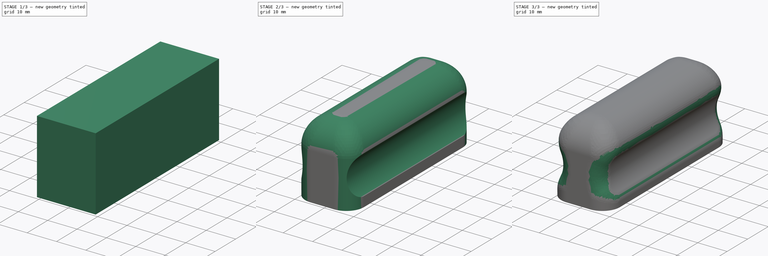
[diagram: build sequence overview — one tinted view per stage of 3, left to right]
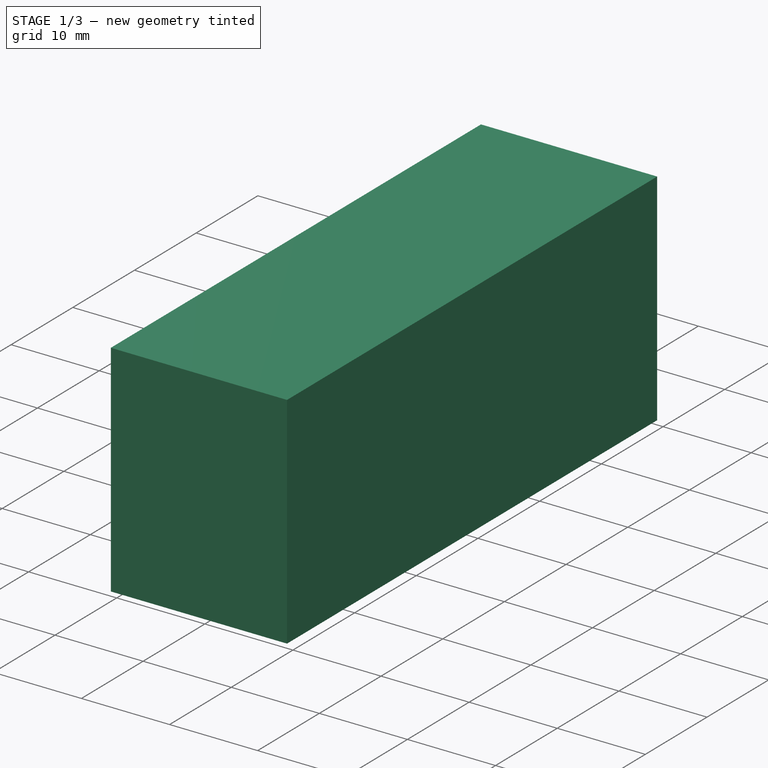
[diagram: stage 1 of 3 — iso view after this stage's code; geometry added in this stage tinted green]
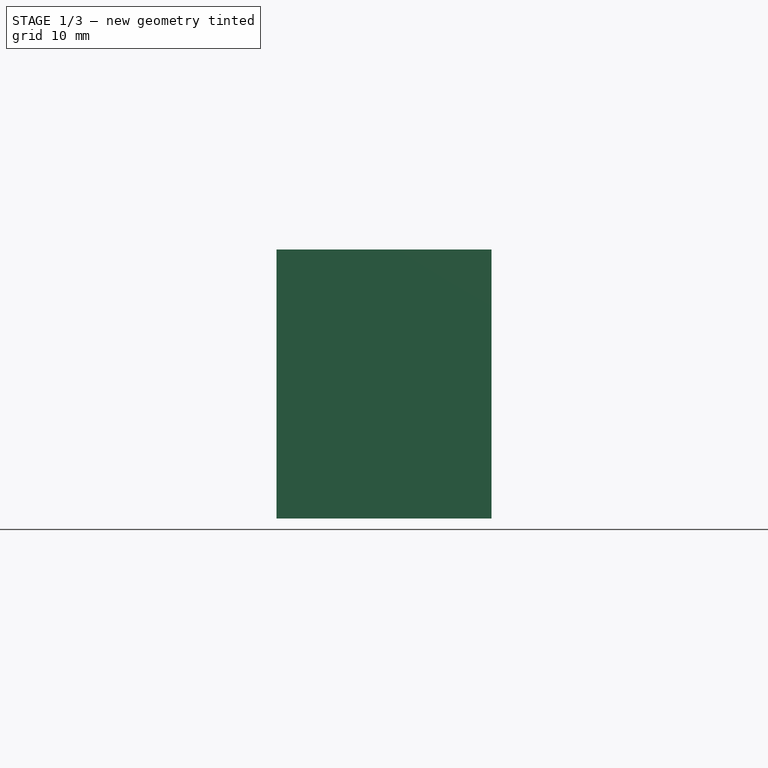
[diagram: stage 1 of 3 — front view after this stage's code; geometry added in this stage tinted green]
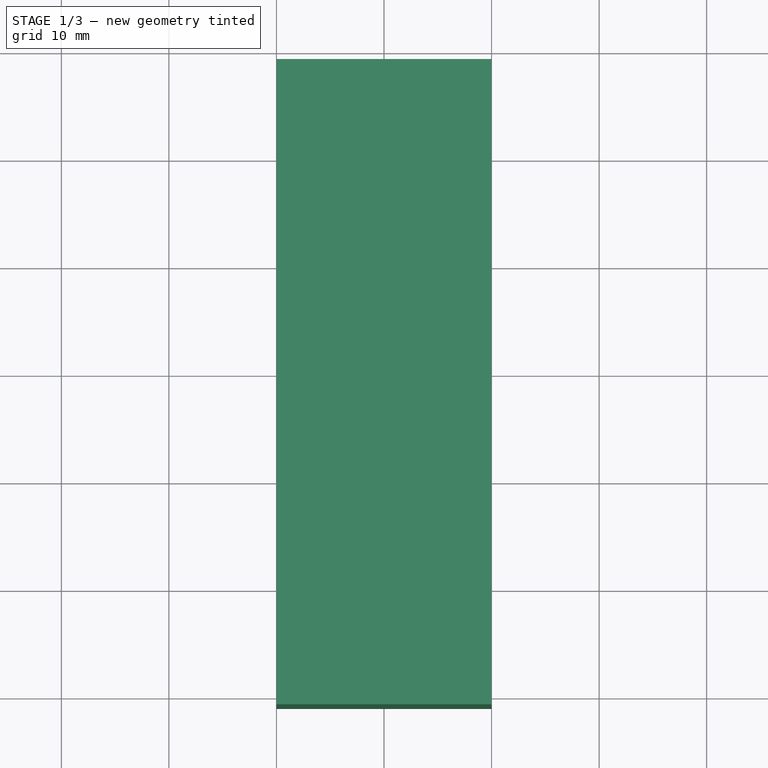
[diagram: stage 1 of 3 — top view after this stage's code; geometry added in this stage tinted green]
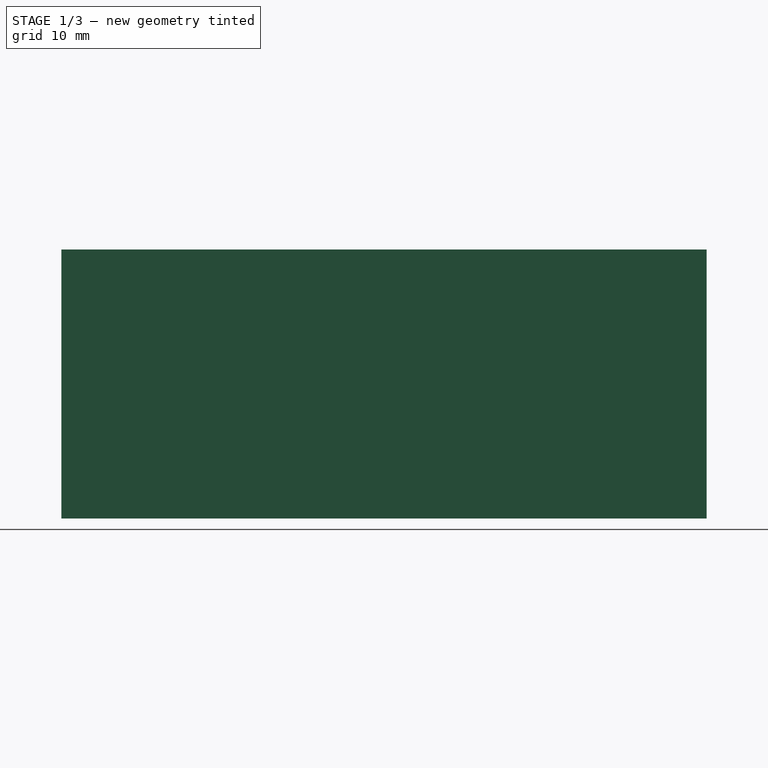
[diagram: stage 1 of 3 — right view after this stage's code; geometry added in this stage tinted green]
FCSTD DOCUMENT  (FreeCAD 0.17R11141 (Git))
Label: panel-handle
License: All rights reserved
LicenseURL: http://en.wikipedia.org/wiki/All_rights_reserved
objects: Sketcher::SketchObject×3, PartDesign::Fillet×3, PartDesign::Pad×2, PartDesign::Pocket×1, PartDesign::Chamfer×1, PartDesign::Body×1
note: 14 computed .brp shape members not serialized (recipe doc carries the construction recipe); baked Part::Feature solids carry a one-line shape summary decoded from their .brp

FEATURE [Sketcher::SketchObject] Sketch
  MapMode = 5
  Support = -> [XY_Plane]
  sketch-geometry (10):
    g0: Circle CenterX=0 CenterY=38.1 CenterZ=0 NormalX=0 NormalY=0 NormalZ=1 Radius=4
    g1: Circle CenterX=0 CenterY=0 CenterZ=0 NormalX=0 NormalY=0 NormalZ=1 Radius=4
    g2: LineSegment StartX=-10 StartY=-10.95 StartZ=0 EndX=10 EndY=-10.95 EndZ=0
    g3: LineSegment StartX=10 StartY=-10.95 StartZ=0 EndX=10 EndY=49.05 EndZ=0
    g4: LineSegment StartX=10 StartY=49.05 StartZ=0 EndX=-10 EndY=49.05 EndZ=0
    g5: LineSegment StartX=-10 StartY=49.05 StartZ=0 EndX=-10 EndY=-10.95 EndZ=0
    g6: LineSegment [constr] StartX=-10 StartY=49.05 StartZ=0 EndX=0 EndY=38.1 EndZ=0
    g7: LineSegment [constr] StartX=0 StartY=38.1 StartZ=0 EndX=10 EndY=49.05 EndZ=0
    g8: LineSegment [constr] StartX=10 StartY=49.05 StartZ=0 EndX=-10 EndY=-10.95 EndZ=0
    g9: LineSegment [constr] StartX=-10 StartY=-10.95 StartZ=0 EndX=0 EndY=0 EndZ=0
  constraints (25):
    c: PointOnObject(g0,g-2)
    c: Coincident(g1,g-1)
    c: Equal(g1,g0)
    c: Radius(g0) = 4
    c: DistanceY(g-1,g0) = 38.1
    c: Coincident(g2,g3)
    c: Coincident(g3,g4)
    c: Coincident(g4,g5)
    c: Coincident(g5,g2)
    c: Horizontal(g2)
    c: Horizontal(g4)
    c: Vertical(g3)
    c: Vertical(g5)
    c: Coincident(g4,g6)
    c: Coincident(g6,g0)
    c: Coincident(g6,g7)
    c: Coincident(g7,g3)
    c: Coincident(g7,g8)
    c: Coincident(g8,g2)
    c: Coincident(g8,g9)
    c: Coincident(g9,g-1)
    c: Equal(g9,g6)
    c: Equal(g6,g7)
    c: DistanceX(g4,g4) = 20
    c: DistanceY(g5,g5) = 60
FEATURE [PartDesign::Pad] Pad
  Length = 10
  Length2 = 100
  Profile = -> Sketch
  Type = 0
FEATURE [Sketcher::SketchObject] Sketch001
  ExternalGeometry = -> [Pad]
  MapMode = 5
  Placement = pos=(0,0,10) rot=(0,0,1;0rad)
  Support = -> [Pad]
  sketch-geometry (4):
    g0: LineSegment StartX=-10 StartY=49.05 StartZ=0 EndX=10 EndY=49.05 EndZ=0
    g1: LineSegment StartX=10 StartY=49.05 StartZ=0 EndX=10 EndY=-10.95 EndZ=0
    g2: LineSegment StartX=10 StartY=-10.95 StartZ=0 EndX=-10 EndY=-10.95 EndZ=0
    g3: LineSegment StartX=-10 StartY=-10.95 StartZ=0 EndX=-10 EndY=49.05 EndZ=0
  constraints (10):
    c: Coincident(g0,g1)
    c: Coincident(g1,g2)
    c: Coincident(g2,g3)
    c: Coincident(g3,g0)
    c: Horizontal(g0)
    c: Horizontal(g2)
    c: Vertical(g1)
    c: Vertical(g3)
    c: Coincident(g0,g-3)
    c: Coincident(g1,g-4)
FEATURE [PartDesign::Pad] Pad001
  BaseFeature = -> Pad
  Length = 15
  Length2 = 100
  Profile = -> Sketch001
  Type = 0
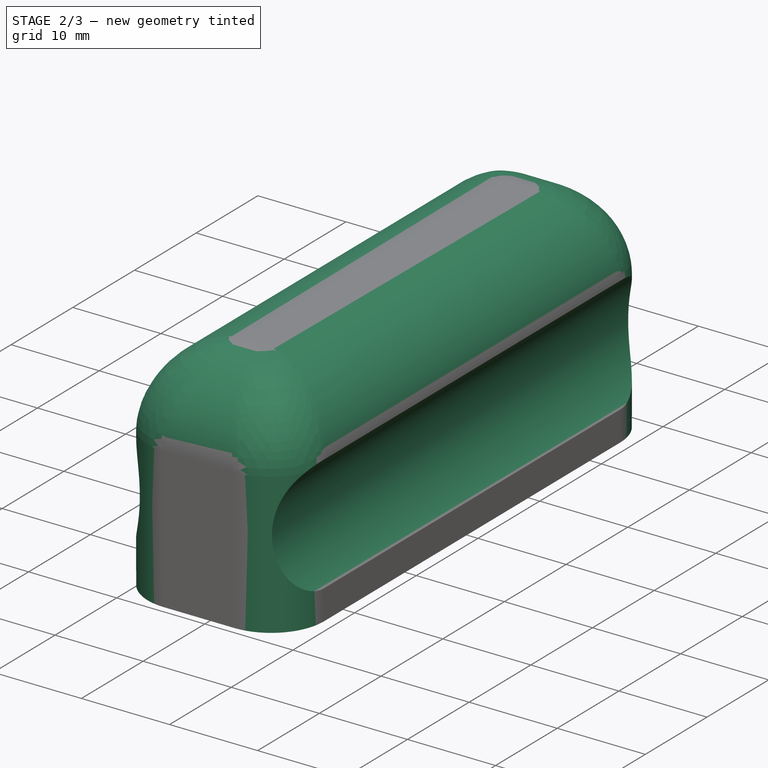
[diagram: stage 2 of 3 — iso view after this stage's code; geometry added in this stage tinted green]
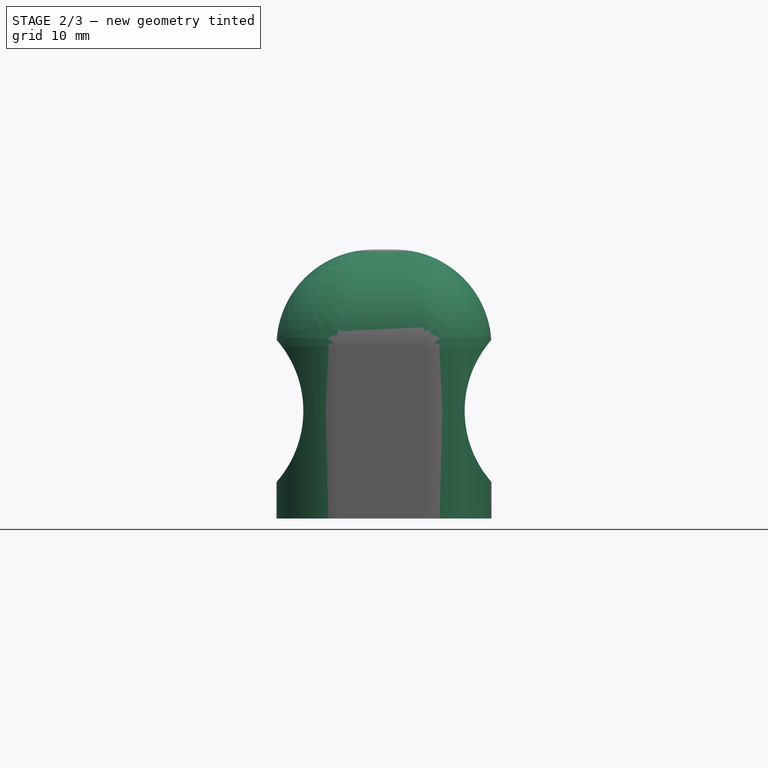
[diagram: stage 2 of 3 — front view after this stage's code; geometry added in this stage tinted green]
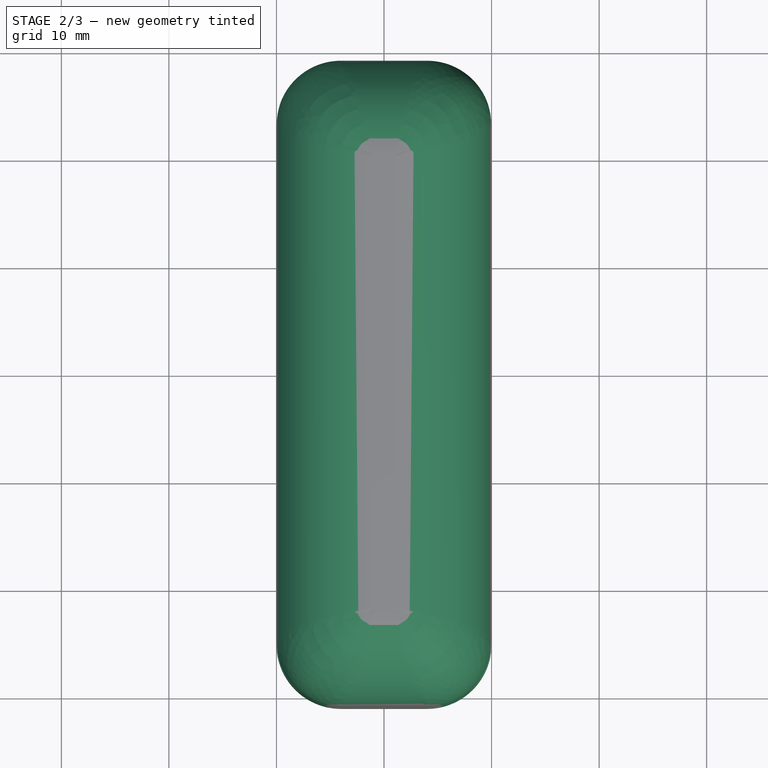
[diagram: stage 2 of 3 — top view after this stage's code; geometry added in this stage tinted green]
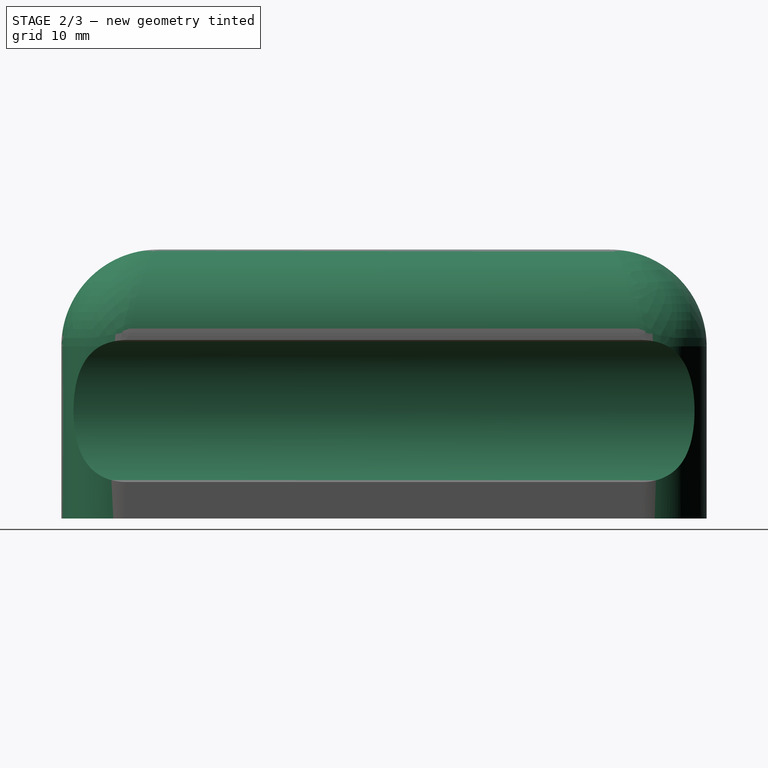
[diagram: stage 2 of 3 — right view after this stage's code; geometry added in this stage tinted green]
FEATURE [PartDesign::Fillet] Fillet
  Base = -> Pad001 [Edge21,Edge19,Edge24,Edge22]
  BaseFeature = -> Pad001
  Radius = 6
FEATURE [PartDesign::Fillet] Fillet001
  Base = -> Fillet [Edge41]
  BaseFeature = -> Fillet
  Radius = 9
FEATURE [Sketcher::SketchObject] Sketch002
  MapMode = 5
  Placement = pos=(0,-10.95,0) rot=(1,0,0;1.5708rad)
  Support = -> [Fillet001]
  sketch-geometry (5):
    g0: LineSegment [constr] StartX=-17.5 StartY=10 StartZ=0 EndX=17.5 EndY=10 EndZ=0
    g1: LineSegment [constr] StartX=-17.5 StartY=10 StartZ=0 EndX=0 EndY=0 EndZ=0
    g2: LineSegment [constr] StartX=0 StartY=0 StartZ=0 EndX=17.5 EndY=10 EndZ=0
    g3: Circle CenterX=-17.5 CenterY=10 CenterZ=0 NormalX=0 NormalY=0 NormalZ=1 Radius=10
    g4: Circle CenterX=17.5 CenterY=10 CenterZ=0 NormalX=0 NormalY=0 NormalZ=1 Radius=10
  constraints (12):
    c: Horizontal(g0)
    c: Coincident(g0,g1)
    c: Coincident(g1,g-1)
    c: Coincident(g1,g2)
    c: Coincident(g2,g0)
    c: Equal(g2,g1)
    c: DistanceY(g0) = 10
    c: Coincident(g3,g0)
    c: Coincident(g4,g0)
    c: Equal(g4,g3)
    c: Radius(g3) = 10
    c: DistanceX(g0,g0) = 35
FEATURE [PartDesign::Pocket] Pocket
  BaseFeature = -> Fillet001
  Length = 5
  Profile = -> Sketch002
  Type = 1
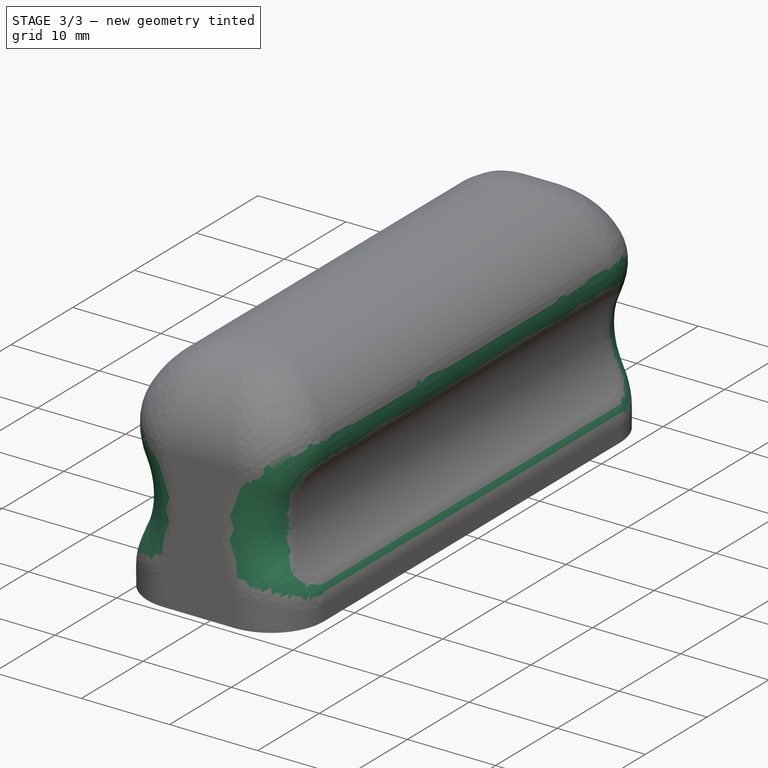
[diagram: stage 3 of 3 — iso view after this stage's code; geometry added in this stage tinted green]
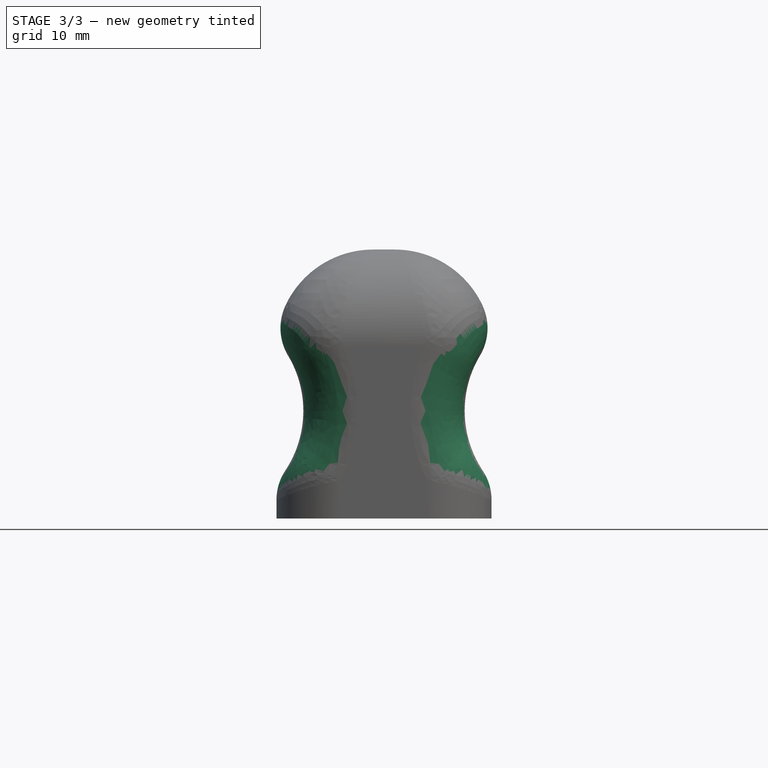
[diagram: stage 3 of 3 — front view after this stage's code; geometry added in this stage tinted green]
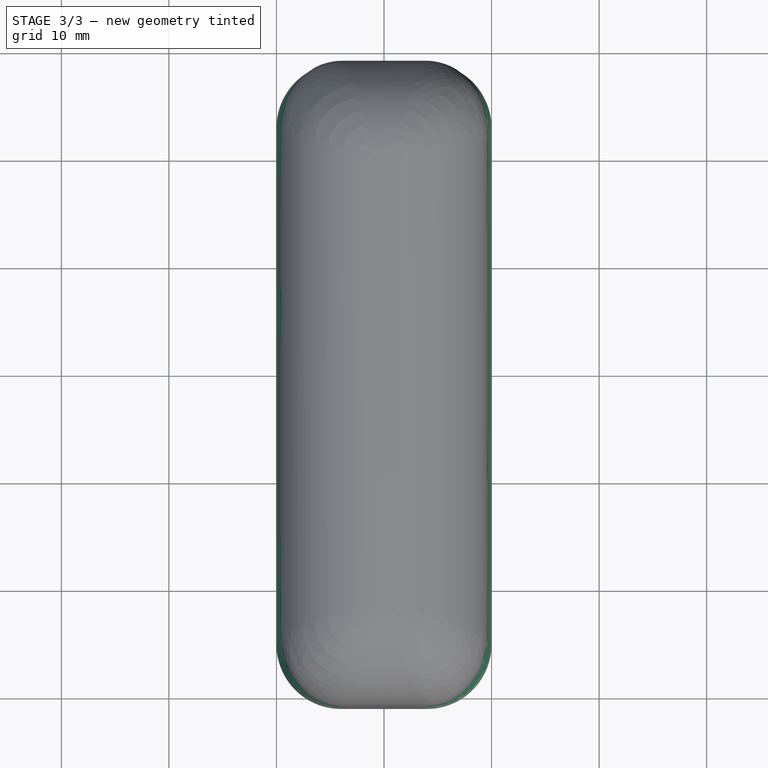
[diagram: stage 3 of 3 — top view after this stage's code; geometry added in this stage tinted green]
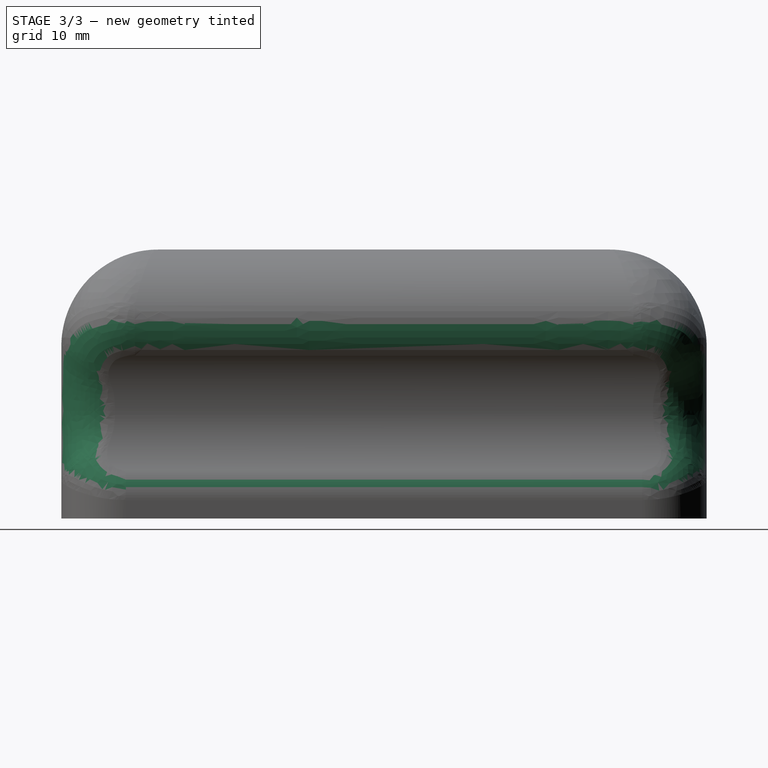
[diagram: stage 3 of 3 — right view after this stage's code; geometry added in this stage tinted green]
FEATURE [PartDesign::Fillet] Fillet002
  Base = -> Pocket [Edge50,Edge21]
  BaseFeature = -> Pocket
  Radius = 5
FEATURE [PartDesign::Chamfer] Chamfer
  Base = -> Fillet002 [Edge62,Edge63]
  BaseFeature = -> Fillet002
  Size = 1
FEATURE [PartDesign::Body] Body
  Group = -> [Sketch,Pad,Sketch001,Pad001,Fillet,Fillet001,Sketch002,Pocket,Fillet002,Chamfer]
  Origin = -> BodyOrigin
  Tip = -> Chamfer
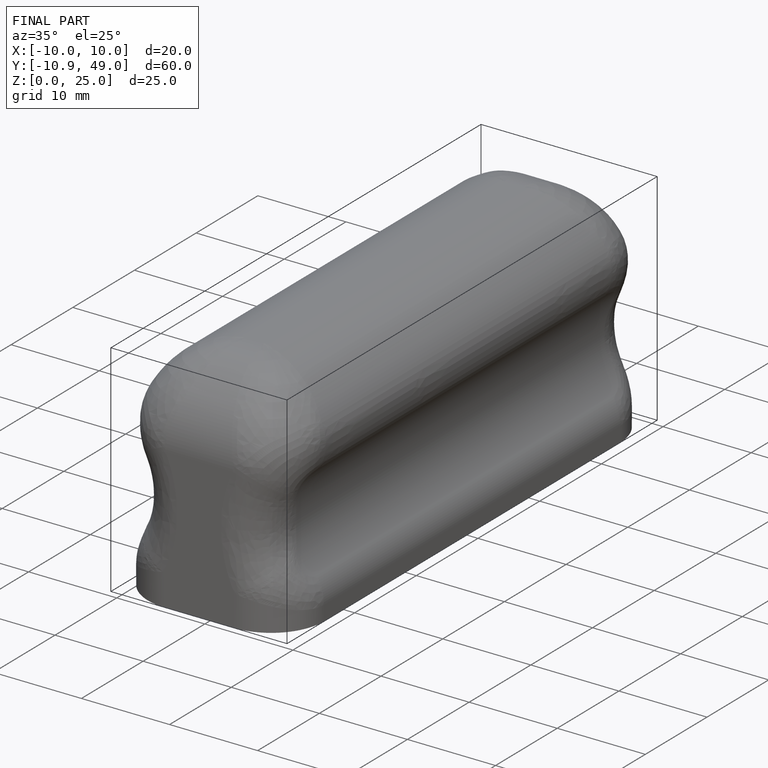
[diagram: finished part — iso view with bounding-box wireframe]
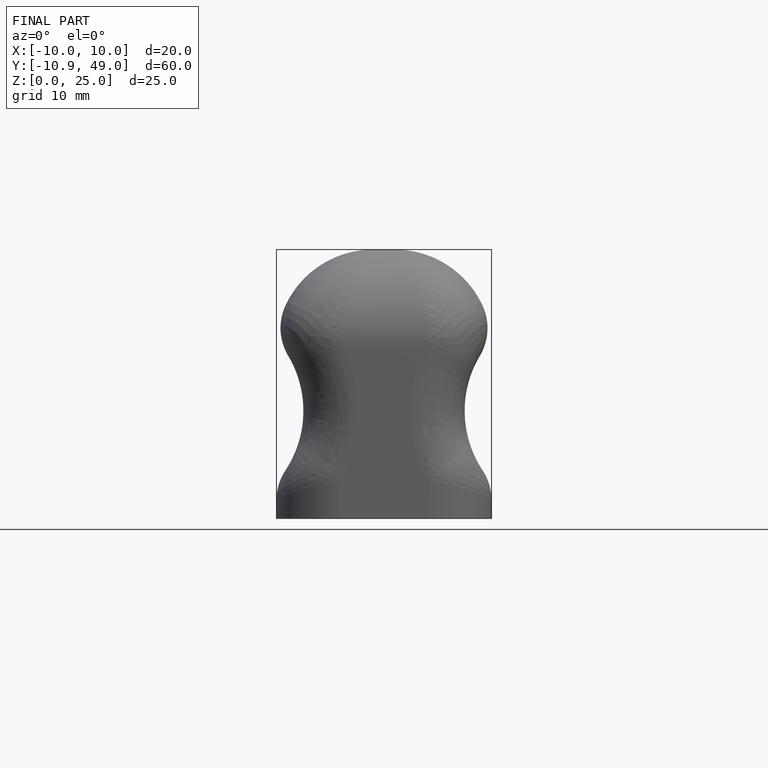
[diagram: finished part — front view with bounding-box wireframe]
